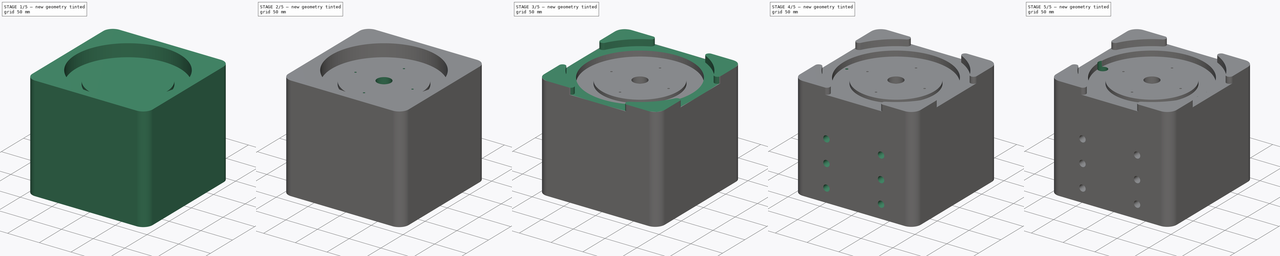
[diagram: build sequence overview — one tinted view per stage of 5, left to right]
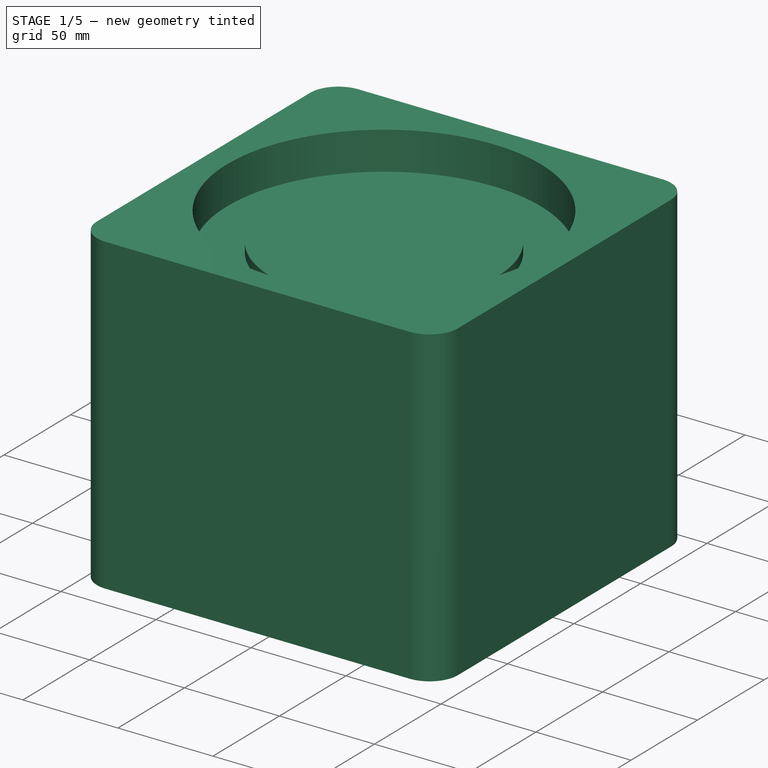
[diagram: stage 1 of 5 — iso view after this stage's code; geometry added in this stage tinted green]
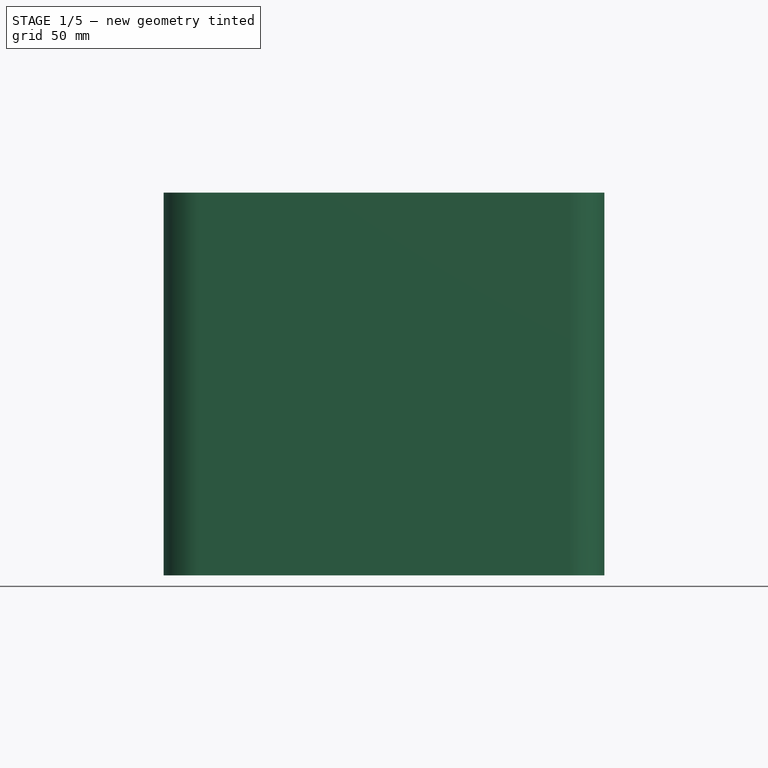
[diagram: stage 1 of 5 — front view after this stage's code; geometry added in this stage tinted green]
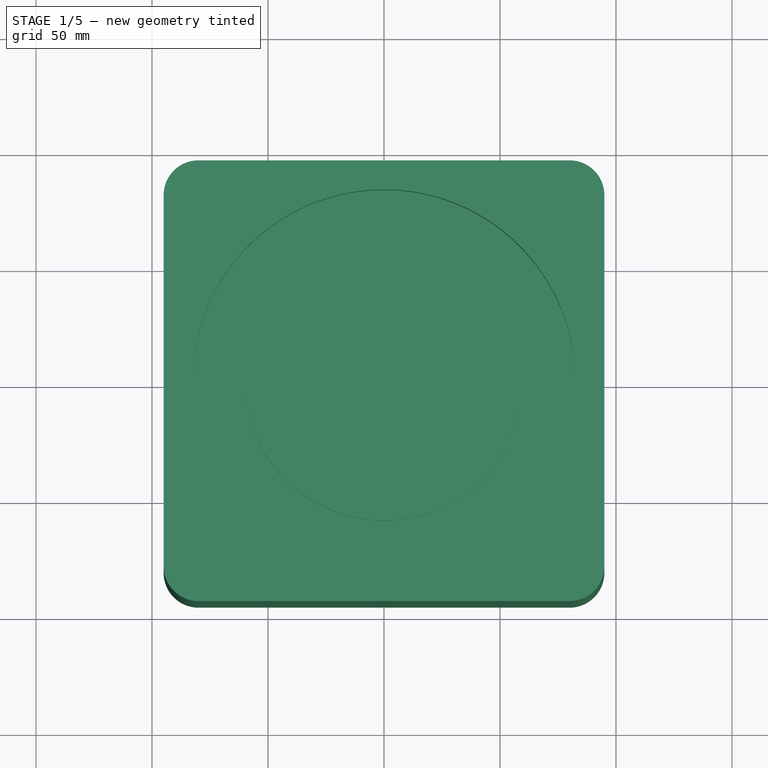
[diagram: stage 1 of 5 — top view after this stage's code; geometry added in this stage tinted green]
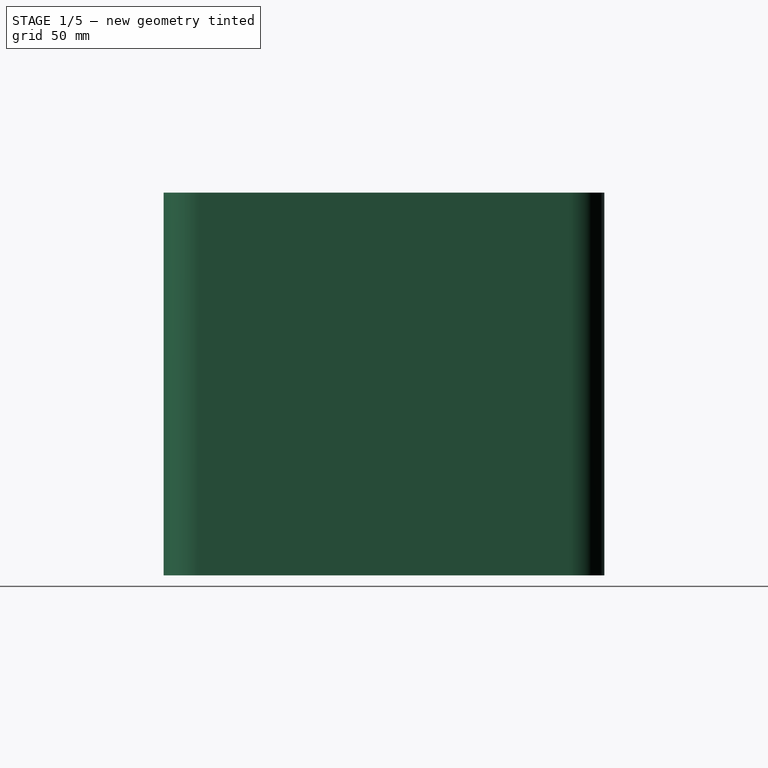
[diagram: stage 1 of 5 — right view after this stage's code; geometry added in this stage tinted green]
FCSTD DOCUMENT  (FreeCAD 0.21R33668 +26 (Git))
Label: Fix_Base
License: All rights reserved
LicenseURL: https://en.wikipedia.org/wiki/All_rights_reserved
objects: Sketcher::SketchObject×26, PartDesign::Pocket×23, PartDesign::Pad×2, PartDesign::Fillet×2, PartDesign::Body×1
note: 81 computed .brp shape members not serialized (recipe doc carries the construction recipe); baked Part::Feature solids carry a one-line shape summary decoded from their .brp

FEATURE [Sketcher::SketchObject] Sketch
  FullyConstrained = true
  MapMode = 5
  Support = -> [XY_Plane]
  sketch-geometry (5):
    g0: LineSegment StartX=-95 StartY=95 StartZ=0 EndX=-95 EndY=-95 EndZ=0
    g1: LineSegment StartX=-95 StartY=-95 StartZ=0 EndX=95 EndY=-95 EndZ=0
    g2: LineSegment StartX=95 StartY=-95 StartZ=0 EndX=95 EndY=95 EndZ=0
    g3: LineSegment StartX=95 StartY=95 StartZ=0 EndX=-95 EndY=95 EndZ=0
    g4: GeomPoint X=0 Y=0 Z=0
  constraints (12):
    c: Coincident(g0,g1)
    c: Coincident(g1,g2)
    c: Coincident(g2,g3)
    c: Coincident(g3,g0)
    c: Horizontal(g1)
    c: Horizontal(g3)
    c: Vertical(g0)
    c: Vertical(g2)
    c: Symmetric(g1,g0,g4)
    c: Coincident(g4,g-1)
    c: DistanceY(g2,g2) = 190
    c: DistanceX(g3,g3) = 190
FEATURE [PartDesign::Pad] Pad
  Direction = (0,0,1)
  Length = 165
  Length2 = 10
  Profile = -> Sketch
  ReferenceAxis = -> Sketch [N_Axis]
  Type = 0
FEATURE [Sketcher::SketchObject] Sketch001
  FullyConstrained = true
  MapMode = 5
  Placement = pos=(0,0,165) rot=(0,0,1;0rad)
  Support = -> [Pad]
  sketch-geometry (1):
    g0: Circle CenterX=0 CenterY=0 CenterZ=0 NormalX=0 NormalY=0 NormalZ=1 AngleXU=0 Radius=82.5
  constraints (2):
    c: Coincident(g0,g-1)
    c: Diameter(g0) = 165
FEATURE [PartDesign::Pocket] Pocket
  BaseFeature = -> Pad
  Direction = (0,0,-1)
  Length = 20
  Length2 = 5
  Profile = -> Sketch001
  ReferenceAxis = -> Sketch001 [N_Axis]
  Type = 0
FEATURE [Sketcher::SketchObject] Sketch002
  FullyConstrained = true
  MapMode = 5
  Placement = pos=(0,0,145) rot=(0,0,1;0rad)
  Support = -> [Pocket]
  sketch-geometry (1):
    g0: Circle CenterX=0 CenterY=0 CenterZ=0 NormalX=0 NormalY=0 NormalZ=1 AngleXU=0 Radius=60
  constraints (2):
    c: Coincident(g0,g-1)
    c: Diameter(g0) = 120
FEATURE [PartDesign::Pad] Pad001
  BaseFeature = -> Pocket
  Direction = (0,0,1)
  Length = 5
  Length2 = 10
  Profile = -> Sketch002
  ReferenceAxis = -> Sketch002 [N_Axis]
  Type = 0
FEATURE [PartDesign::Fillet] Fillet
  Base = -> Pad001 [Edge8,Edge2,Edge5,Edge1]
  BaseFeature = -> Pad001
  Radius = 15
  SupportTransform = false
  UseAllEdges = false
FEATURE [Sketcher::SketchObject] Sketch003
  ExternalGeometry = -> [Fillet]
  FullyConstrained = true
  MapMode = 5
  Placement = pos=(0,95,0) rot=(0,0.707107,0.707107;3.14159rad)
  Support = -> [Fillet]
  sketch-geometry (16):
    g0: LineSegment StartX=-50 StartY=35 StartZ=0 EndX=50 EndY=35 EndZ=0
    g1: LineSegment StartX=50 StartY=35 StartZ=0 EndX=50 EndY=5 EndZ=0
    g2: LineSegment StartX=50 StartY=5 StartZ=0 EndX=-50 EndY=5 EndZ=0
    g3: LineSegment StartX=-50 StartY=5 StartZ=0 EndX=-50 EndY=35 EndZ=0
    g4: LineSegment StartX=-50 StartY=70 StartZ=0 EndX=50 EndY=70 EndZ=0
    g5: LineSegment StartX=50 StartY=70 StartZ=0 EndX=50 EndY=40 EndZ=0
    g6: LineSegment StartX=50 StartY=40 StartZ=0 EndX=-50 EndY=40 EndZ=0
    g7: LineSegment StartX=-50 StartY=40 StartZ=0 EndX=-50 EndY=70 EndZ=0
    g8: LineSegment StartX=-50 StartY=105 StartZ=0 EndX=50 EndY=105 EndZ=0
    g9: LineSegment StartX=50 StartY=105 StartZ=0 EndX=50 EndY=75 EndZ=0
    g10: LineSegment StartX=50 StartY=75 StartZ=0 EndX=-50 EndY=75 EndZ=0
    g11: LineSegment StartX=-50 StartY=75 StartZ=0 EndX=-50 EndY=105 EndZ=0
    g12: LineSegment StartX=-50 StartY=140 StartZ=0 EndX=50 EndY=140 EndZ=0
    g13: LineSegment StartX=50 StartY=140 StartZ=0 EndX=50 EndY=110 EndZ=0
    g14: LineSegment StartX=50 StartY=110 StartZ=0 EndX=-50 EndY=110 EndZ=0
    g15: LineSegment StartX=-50 StartY=110 StartZ=0 EndX=-50 EndY=140 EndZ=0
  constraints (49):
    c: DistanceX(g-3,g-4) = 190
    c: Coincident(g0,g1)
    c: Coincident(g1,g2)
    c: Coincident(g2,g3)
    c: Coincident(g3,g0)
    c: Horizontal(g0)
    c: Horizontal(g2)
    c: Vertical(g1)
    c: Vertical(g3)
    c: DistanceY(g1,g1) = 30
    c: DistanceX(g0,g0) = 100
    c: DistanceX(g-1,g1) = 50
    c: DistanceY(g-1,g2) = 5
    c: Coincident(g4,g5)
    c: Coincident(g5,g6)
    c: Coincident(g6,g7)
    c: Coincident(g7,g4)
    c: Horizontal(g4)
    c: Horizontal(g6)
    c: Vertical(g5)
    c: Vertical(g7)
    c: Coincident(g8,g9)
    c: Coincident(g9,g10)
    c: Coincident(g10,g11)
    c: Coincident(g11,g8)
    c: Horizontal(g8)
    c: Horizontal(g10)
    c: Vertical(g9)
    c: Vertical(g11)
    c: Coincident(g12,g13)
    c: Coincident(g13,g14)
    c: Coincident(g14,g15)
    c: Coincident(g15,g12)
    c: Horizontal(g12)
    c: Horizontal(g14)
    c: Vertical(g13)
    c: Vertical(g15)
    c: Equal(g1,g5)
    c: Equal(g9,g1)
    c: Equal(g13,g1)
    c: DistanceY(g0,g5) = 5
    c: DistanceY(g4,g9) = 5
    c: DistanceY(g8,g13) = 5
    c: Equal(g0,g6)
    c: Equal(g10,g0)
    c: Equal(g14,g10)
    c: Vertical(g12,g0)
    c: Vertical(g4,g0)
    c: Vertical(g8,g4)
FEATURE [PartDesign::Pocket] Pocket001
  BaseFeature = -> Fillet
  Direction = (0,-1,2e-16)
  Length = 160
  Length2 = 5
  Profile = -> Sketch003
  ReferenceAxis = -> Sketch003 [N_Axis]
  Type = 0
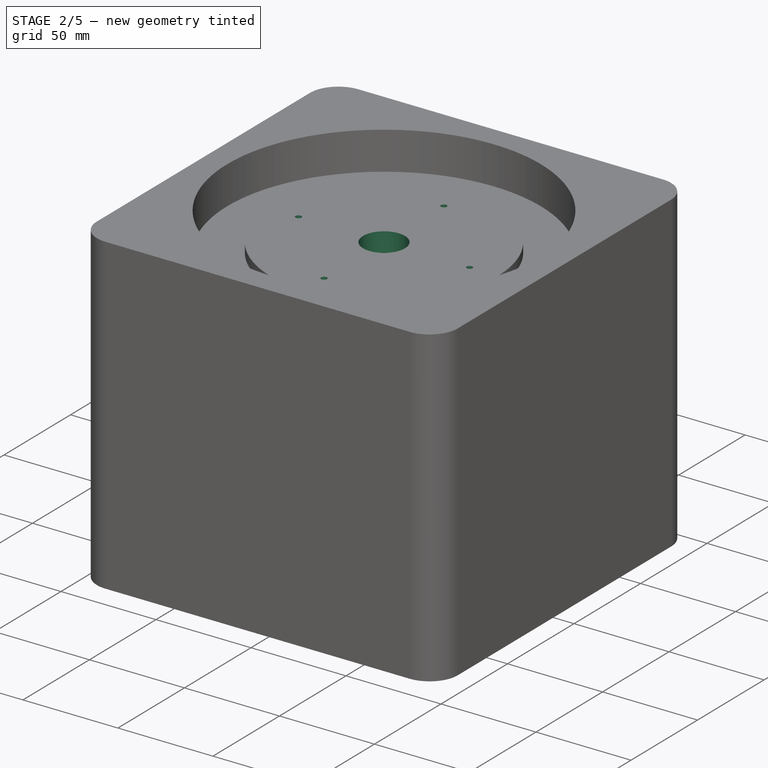
[diagram: stage 2 of 5 — iso view after this stage's code; geometry added in this stage tinted green]
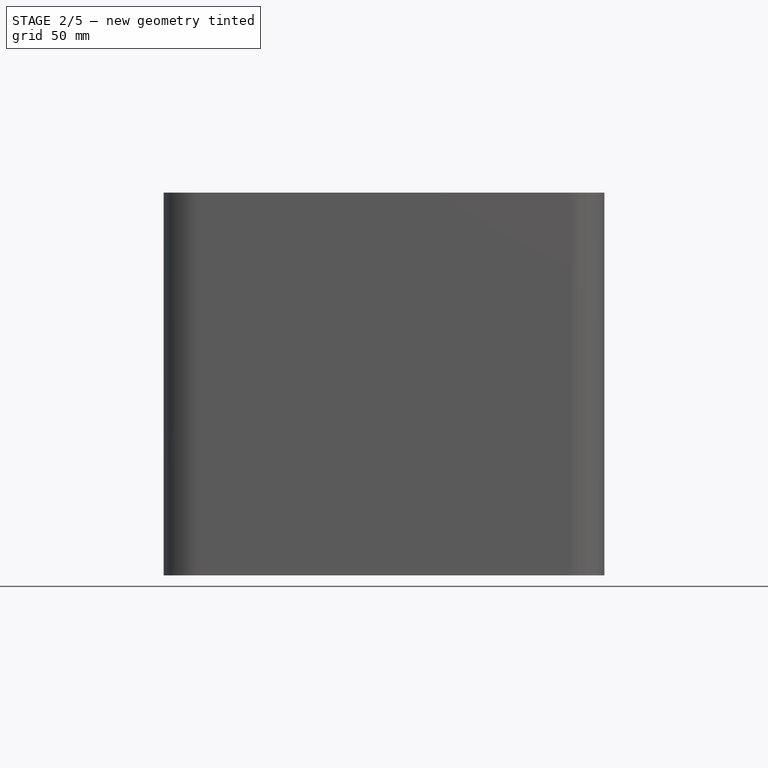
[diagram: stage 2 of 5 — front view after this stage's code; geometry added in this stage tinted green]
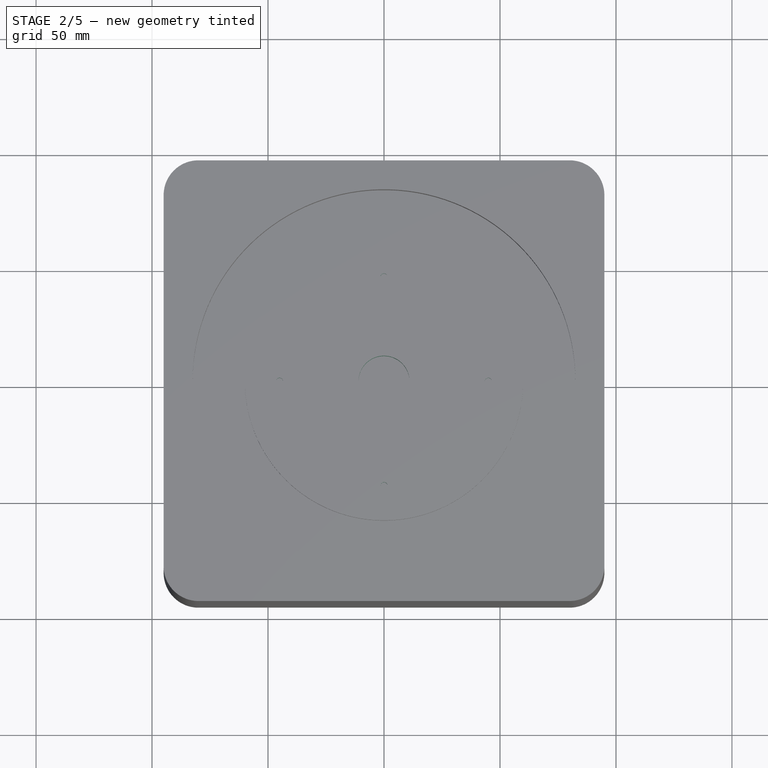
[diagram: stage 2 of 5 — top view after this stage's code; geometry added in this stage tinted green]
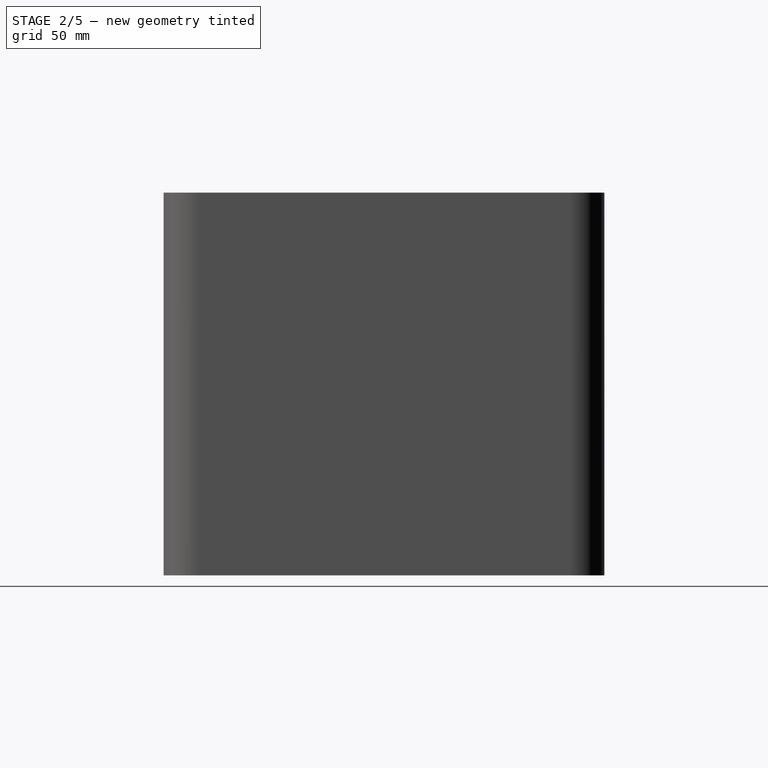
[diagram: stage 2 of 5 — right view after this stage's code; geometry added in this stage tinted green]
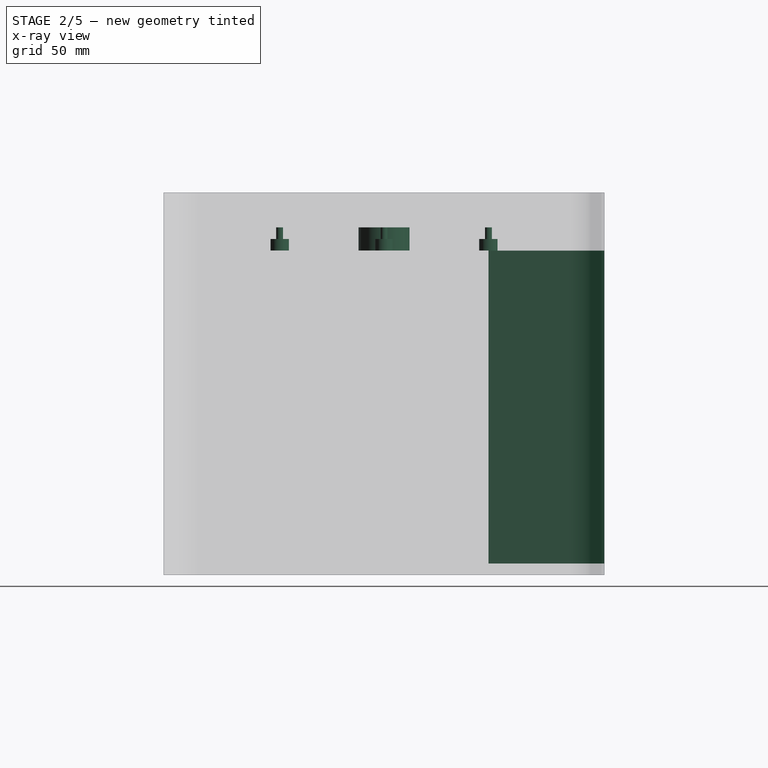
[diagram: stage 2 of 5 — x-ray composite at the right view; earlier geometry ghosted, this stage's added geometry solid]
FEATURE [Sketcher::SketchObject] Sketch004
  ExternalGeometry = -> [Pocket001]
  FullyConstrained = true
  MapMode = 5
  Placement = pos=(0,95,0) rot=(0,0.707107,0.707107;3.14159rad)
  Support = -> [Pocket001]
  sketch-geometry (4):
    g0: LineSegment StartX=-60 StartY=140 StartZ=0 EndX=60 EndY=140 EndZ=0
    g1: LineSegment StartX=60 StartY=140 StartZ=0 EndX=60 EndY=5 EndZ=0
    g2: LineSegment StartX=60 StartY=5 StartZ=0 EndX=-60 EndY=5 EndZ=0
    g3: LineSegment StartX=-60 StartY=5 StartZ=0 EndX=-60 EndY=140 EndZ=0
  constraints (12):
    c: Coincident(g0,g1)
    c: Coincident(g1,g2)
    c: Coincident(g2,g3)
    c: Coincident(g3,g0)
    c: Horizontal(g0)
    c: Horizontal(g2)
    c: Vertical(g1)
    c: Vertical(g3)
    c: Horizontal(g0,g-4)
    c: Horizontal(g1,g-3)
    c: DistanceX(g0,g-4) = 10
    c: DistanceX(g-4,g0) = 10
FEATURE [PartDesign::Pocket] Pocket002
  BaseFeature = -> Pocket001
  Direction = (0,-1,2e-16)
  Length = 50
  Length2 = 5
  Profile = -> Sketch004
  ReferenceAxis = -> Sketch004 [N_Axis]
  Type = 0
FEATURE [Sketcher::SketchObject] Sketch005
  FullyConstrained = true
  MapMode = 5
  Placement = pos=(0,0,150) rot=(0,0,1;0rad)
  Support = -> [Pocket002]
  sketch-geometry (4):
    g0: Circle CenterX=0 CenterY=45 CenterZ=0 NormalX=0 NormalY=0 NormalZ=1 AngleXU=0 Radius=1.5
    g1: Circle CenterX=45 CenterY=0 CenterZ=0 NormalX=0 NormalY=0 NormalZ=1 AngleXU=0 Radius=1.5
    g2: Circle CenterX=0 CenterY=-45 CenterZ=0 NormalX=0 NormalY=0 NormalZ=1 AngleXU=0 Radius=1.5
    g3: Circle CenterX=-45 CenterY=0 CenterZ=0 NormalX=0 NormalY=0 NormalZ=1 AngleXU=0 Radius=1.5
  constraints (12):
    c: PointOnObject(g0,g-2)
    c: Diameter(g0) = 3
    c: PointOnObject(g1,g-1)
    c: Equal(g1,g0)
    c: PointOnObject(g2,g-2)
    c: PointOnObject(g3,g-1)
    c: Equal(g3,g0)
    c: Equal(g1,g2)
    c: DistanceY(g2,g0) = 90
    c: DistanceY(g-1,g0) = 45
    c: DistanceX(g3,g-1) = 45
    c: DistanceX(g-1,g1) = 45
FEATURE [PartDesign::Pocket] Pocket003
  BaseFeature = -> Pocket002
  Direction = (0,0,-1)
  Length = 5
  Length2 = 5
  Profile = -> Sketch005
  ReferenceAxis = -> Sketch005 [N_Axis]
  Type = 2
FEATURE [Sketcher::SketchObject] Sketch006
  ExternalGeometry = -> [Pocket003]
  FullyConstrained = true
  MapMode = 5
  Placement = pos=(0,3.08e-14,140) rot=(1,0,0;3.14159rad)
  Support = -> [Pocket003]
  sketch-geometry (4):
    g0: Circle CenterX=-45 CenterY=0 CenterZ=0 NormalX=0 NormalY=0 NormalZ=1 AngleXU=0 Radius=4
    g1: Circle CenterX=0 CenterY=-45 CenterZ=0 NormalX=0 NormalY=0 NormalZ=1 AngleXU=0 Radius=4
    g2: Circle CenterX=45 CenterY=0 CenterZ=0 NormalX=0 NormalY=0 NormalZ=1 AngleXU=0 Radius=4
    g3: Circle CenterX=0 CenterY=45 CenterZ=0 NormalX=0 NormalY=0 NormalZ=1 AngleXU=0 Radius=4
  constraints (8):
    c: Coincident(g0,g-6)
    c: Diameter(g0) = 8
    c: Coincident(g1,g-5)
    c: Diameter(g1) = 8
    c: Coincident(g2,g-3)
    c: Diameter(g2) = 8
    c: Coincident(g3,g-4)
    c: Diameter(g3) = 8
FEATURE [PartDesign::Pocket] Pocket004
  BaseFeature = -> Pocket003
  Direction = (0,2e-16,1)
  Length = 5
  Length2 = 5
  Profile = -> Sketch006
  ReferenceAxis = -> Sketch006 [N_Axis]
  Type = 0
FEATURE [Sketcher::SketchObject] Sketch007
  ExternalGeometry = -> [Pocket004]
  FullyConstrained = true
  MapMode = 5
  Placement = pos=(0,0,150) rot=(0,0,1;0rad)
  Support = -> [Pocket004]
  sketch-geometry (1):
    g0: Circle CenterX=0 CenterY=0 CenterZ=0 NormalX=0 NormalY=0 NormalZ=1 AngleXU=0 Radius=11
  constraints (2):
    c: Coincident(g0,g-3)
    c: Diameter(g0) = 22
FEATURE [PartDesign::Pocket] Pocket005
  BaseFeature = -> Pocket004
  Direction = (0,0,-1)
  Length = 5
  Length2 = 5
  Profile = -> Sketch007
  ReferenceAxis = -> Sketch007 [N_Axis]
  Type = 2
FEATURE [Sketcher::SketchObject] Sketch008
  ExternalGeometry = -> [Pocket005]
  FullyConstrained = true
  MapMode = 5
  Placement = pos=(0,95,0) rot=(0,0.707107,0.707107;3.14159rad)
  Support = -> [Pocket005]
  sketch-geometry (4):
    g0: LineSegment StartX=-70 StartY=140 StartZ=0 EndX=70 EndY=140 EndZ=0
    g1: LineSegment StartX=70 StartY=140 StartZ=0 EndX=70 EndY=5 EndZ=0
    g2: LineSegment StartX=70 StartY=5 StartZ=0 EndX=-70 EndY=5 EndZ=0
    g3: LineSegment StartX=-70 StartY=5 StartZ=0 EndX=-70 EndY=140 EndZ=0
  constraints (12):
    c: Coincident(g0,g1)
    c: Coincident(g1,g2)
    c: Coincident(g2,g3)
    c: Coincident(g3,g0)
    c: Horizontal(g0)
    c: Horizontal(g2)
    c: Vertical(g1)
    c: Vertical(g3)
    c: Horizontal(g0,g-5)
    c: Horizontal(g1,g-6)
    c: DistanceX(g-5,g0) = 10
    c: DistanceX(g0,g-3) = 10
FEATURE [PartDesign::Pocket] Pocket006
  BaseFeature = -> Pocket005
  Direction = (0,-1,2e-16)
  Length = 5
  Length2 = 5
  Profile = -> Sketch008
  ReferenceAxis = -> Sketch008 [N_Axis]
  Type = 0
FEATURE [Sketcher::SketchObject] Sketch009
  ExternalGeometry = -> [Pocket006]
  FullyConstrained = true
  MapMode = 5
  Placement = pos=(60,0,0) rot=(0.57735,-0.57735,-0.57735;2.0944rad)
  Support = -> [Pocket006]
  sketch-geometry (4):
    g0: LineSegment StartX=-80 StartY=140 StartZ=0 EndX=-50 EndY=140 EndZ=0
    g1: LineSegment StartX=-50 StartY=140 StartZ=0 EndX=-50 EndY=5 EndZ=0
    g2: LineSegment StartX=-50 StartY=5 StartZ=0 EndX=-80 EndY=5 EndZ=0
    g3: LineSegment StartX=-80 StartY=5 StartZ=0 EndX=-80 EndY=140 EndZ=0
  constraints (14):
    c: Coincident(g0,g1)
    c: Coincident(g1,g2)
    c: Coincident(g2,g3)
    c: Coincident(g3,g0)
    c: Horizontal(g0)
    c: Horizontal(g2)
    c: Vertical(g1)
    c: Vertical(g3)
    c: Horizontal(g-3,g2)
    c: Horizontal(g0,g-3)
    c: DistanceX(g-3,g-3) = 0
    c: DistanceY(g-3,g-3) = 135
    c: DistanceX(g-3,g0) = 10
    c: DistanceX(g0,g-4) = 5
FEATURE [PartDesign::Pocket] Pocket007
  BaseFeature = -> Pocket006
  Direction = (1,0,0)
  Length = 0
  Length2 = 5
  Profile = -> Sketch009
  ReferenceAxis = -> Sketch009 [N_Axis]
  Type = 3
  UpToFace = -> Pocket006 [Face21]
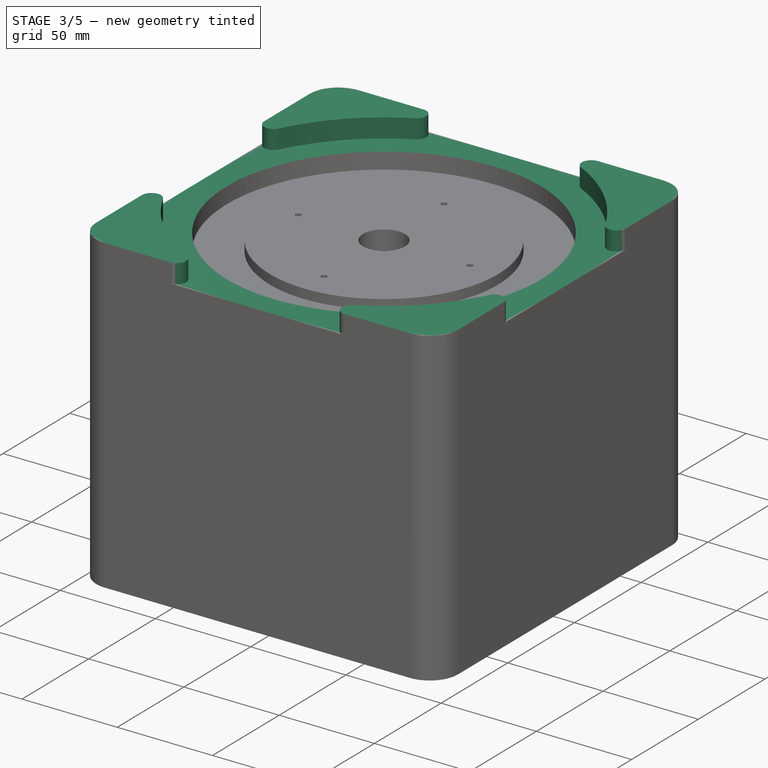
[diagram: stage 3 of 5 — iso view after this stage's code; geometry added in this stage tinted green]
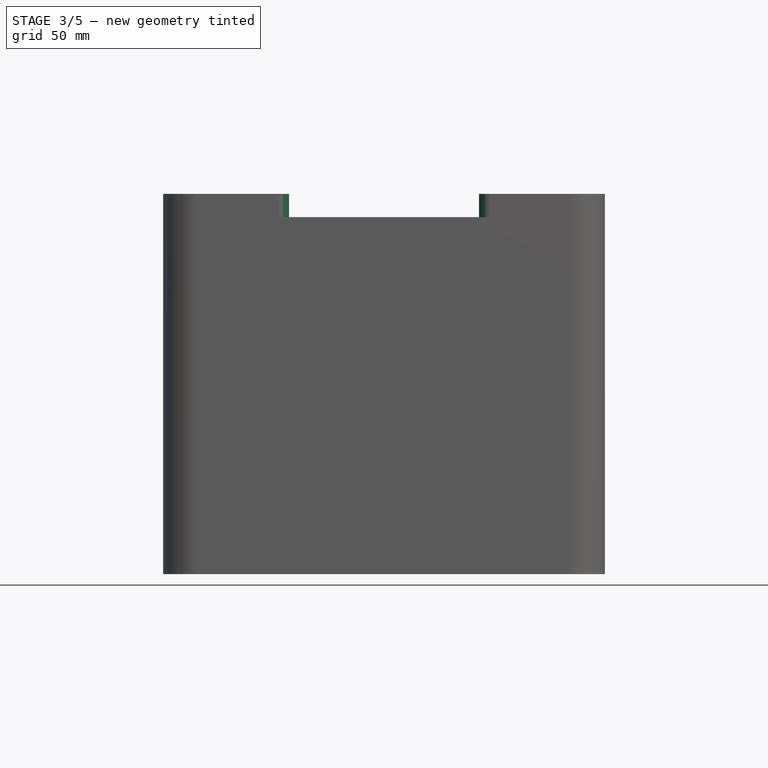
[diagram: stage 3 of 5 — front view after this stage's code; geometry added in this stage tinted green]
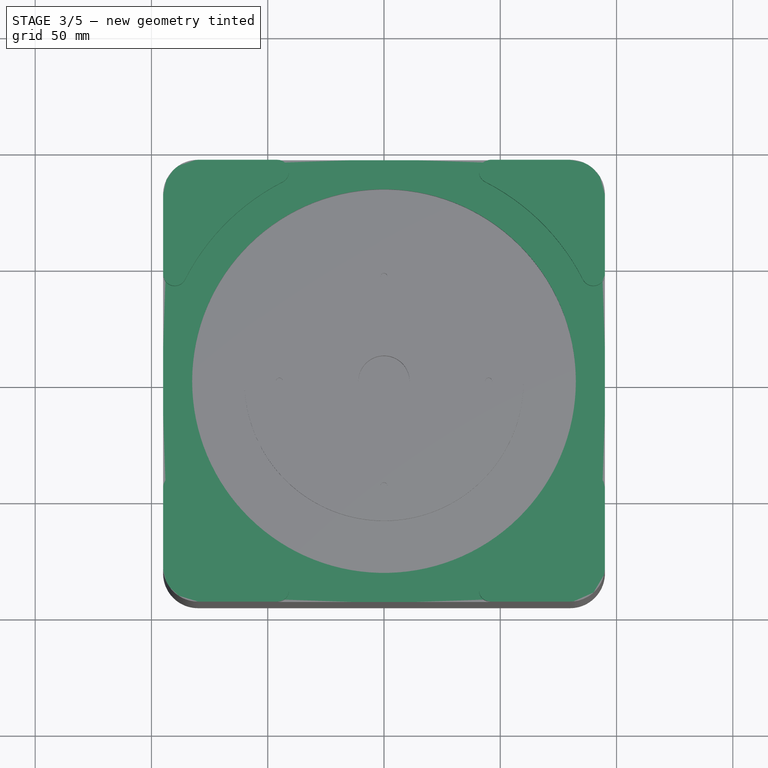
[diagram: stage 3 of 5 — top view after this stage's code; geometry added in this stage tinted green]
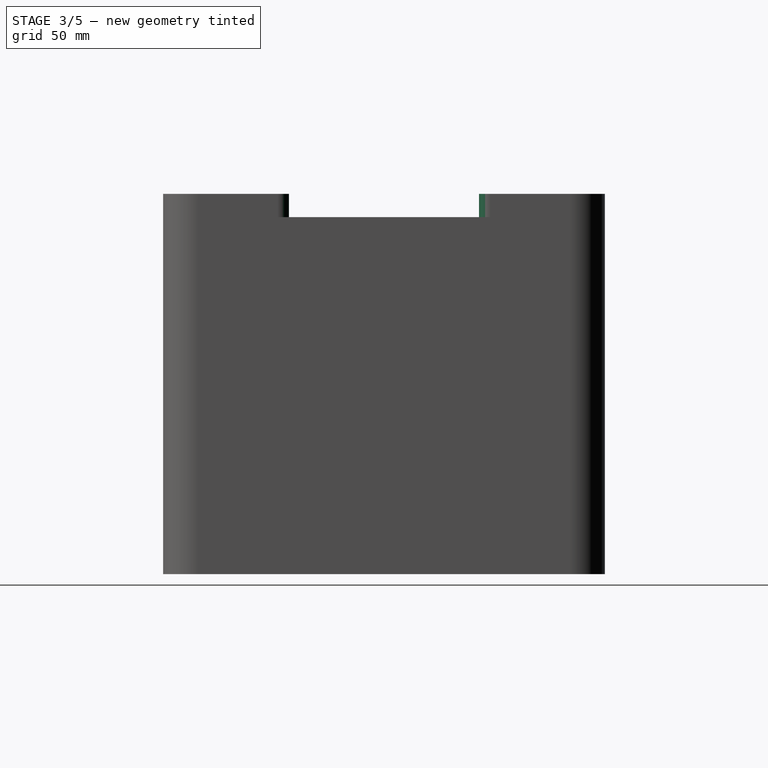
[diagram: stage 3 of 5 — right view after this stage's code; geometry added in this stage tinted green]
FEATURE [Sketcher::SketchObject] Sketch010
  ExternalGeometry = -> [Pocket007]
  FullyConstrained = true
  MapMode = 5
  Placement = pos=(-60,0,0) rot=(0.57735,0.57735,0.57735;2.0944rad)
  Support = -> [Pocket007]
  sketch-geometry (4):
    g0: LineSegment StartX=50 StartY=140 StartZ=0 EndX=80 EndY=140 EndZ=0
    g1: LineSegment StartX=80 StartY=140 StartZ=0 EndX=80 EndY=5 EndZ=0
    g2: LineSegment StartX=80 StartY=5 StartZ=0 EndX=50 EndY=5 EndZ=0
    g3: LineSegment StartX=50 StartY=5 StartZ=0 EndX=50 EndY=140 EndZ=0
  constraints (12):
    c: Coincident(g0,g1)
    c: Coincident(g1,g2)
    c: Coincident(g2,g3)
    c: Coincident(g3,g0)
    c: Horizontal(g0)
    c: Horizontal(g2)
    c: Vertical(g1)
    c: Vertical(g3)
    c: Horizontal(g0,g-3)
    c: DistanceX(g1,g-3) = 10
    c: DistanceX(g-4,g2) = 5
    c: Horizontal(g1,g-3)
FEATURE [PartDesign::Pocket] Pocket008
  BaseFeature = -> Pocket007
  Direction = (-1,0,0)
  Length = 0
  Length2 = 5
  Profile = -> Sketch010
  ReferenceAxis = -> Sketch010 [N_Axis]
  Type = 3
  UpToFace = -> Pocket007 [Face15]
FEATURE [Sketcher::SketchObject] Sketch011
  FullyConstrained = false
  MapMode = 5
  Placement = pos=(0,0,165) rot=(0,0,1;0rad)
  Support = -> [Pocket008]
  sketch-geometry (4):
    g0: LineSegment StartX=-142.432 StartY=131.691 StartZ=0 EndX=161.874 EndY=131.691 EndZ=0
    g1: LineSegment StartX=161.874 StartY=131.691 StartZ=0 EndX=161.874 EndY=-107.784 EndZ=0
    g2: LineSegment StartX=161.874 StartY=-107.784 StartZ=0 EndX=-142.432 EndY=-107.784 EndZ=0
    g3: LineSegment StartX=-142.432 StartY=-107.784 StartZ=0 EndX=-142.432 EndY=131.691 EndZ=0
  constraints (8):
    c: Coincident(g0,g1)
    c: Coincident(g1,g2)
    c: Coincident(g2,g3)
    c: Coincident(g3,g0)
    c: Horizontal(g0)
    c: Horizontal(g2)
    c: Vertical(g1)
    c: Vertical(g3)
FEATURE [PartDesign::Pocket] Pocket009
  BaseFeature = -> Pocket008
  Direction = (0,0,-1)
  Length = 1.5
  Length2 = 5
  Profile = -> Sketch011
  ReferenceAxis = -> Sketch011 [N_Axis]
  Type = 0
FEATURE [Sketcher::SketchObject] Sketch012
  ExternalGeometry = -> [Pocket009]
  FullyConstrained = true
  MapMode = 5
  Placement = pos=(0,0,163.5) rot=(0,0,1;0rad)
  Support = -> [Pocket009]
  sketch-geometry (2):
    g0: Circle CenterX=0 CenterY=0 CenterZ=0 NormalX=0 NormalY=0 NormalZ=1 AngleXU=0 Radius=75
    g1: Circle CenterX=0 CenterY=0 CenterZ=0 NormalX=0 NormalY=0 NormalZ=1 AngleXU=0 Radius=96
  constraints (5):
    c: Coincident(g0,g-3)
    c: Diameter(g-3) = 165
    c: Diameter(g0) = 150
    c: Coincident(g1,g0)
    c: Diameter(g1) = 192
FEATURE [PartDesign::Pocket] Pocket010
  BaseFeature = -> Pocket009
  Direction = (0,0,-1)
  Length = 10
  Length2 = 5
  Profile = -> Sketch012
  ReferenceAxis = -> Sketch012 [N_Axis]
  Type = 0
FEATURE [PartDesign::Fillet] Fillet001
  Base = -> Pocket010 [Edge4,Edge6,Edge51,Edge20,Edge58,Edge57,Edge30,Edge34]
  BaseFeature = -> Pocket010
  Radius = 5
  SupportTransform = false
  UseAllEdges = false
FEATURE [Sketcher::SketchObject] Sketch013
  ExternalGeometry = -> [Fillet001]
  FullyConstrained = true
  MapMode = 5
  Placement = pos=(0,90,-1.89e-14) rot=(0,0.707107,0.707107;3.14159rad)
  Support = -> [Fillet001]
  sketch-geometry (4):
    g0: Circle CenterX=65 CenterY=125 CenterZ=0 NormalX=0 NormalY=0 NormalZ=1 AngleXU=0 Radius=2
    g1: Circle CenterX=65 CenterY=20 CenterZ=0 NormalX=0 NormalY=0 NormalZ=1 AngleXU=0 Radius=2
    g2: Circle CenterX=-65 CenterY=20 CenterZ=0 NormalX=0 NormalY=0 NormalZ=1 AngleXU=0 Radius=2
    g3: Circle CenterX=-65 CenterY=125 CenterZ=0 NormalX=0 NormalY=0 NormalZ=1 AngleXU=0 Radius=2
  constraints (15):
    c: DistanceX(g-5,g-6) = 10
    c: DistanceY(g-5,g-5) = 135
    c: Equal(g3,g0)
    c: Equal(g1,g2)
    c: Diameter(g3) = 4
    c: Equal(g1,g0)
    c: Vertical(g3,g2)
    c: Vertical(g1,g0)
    c: DistanceX(g0,g-6) = 5
    c: DistanceX(g3,g-3) = 5
    c: DistanceY(g-5,g1) = 15
    c: DistanceY(g0,g-5) = 15
    c: Horizontal(g3,g0)
    c: Horizontal(g2,g1)
    c: DistanceY(g-7,g-8) = 30
FEATURE [PartDesign::Pocket] Pocket011
  BaseFeature = -> Fillet001
  Direction = (0,-1,2e-16)
  Length = 10
  Length2 = 5
  Profile = -> Sketch013
  ReferenceAxis = -> Sketch013 [N_Axis]
  Type = 0
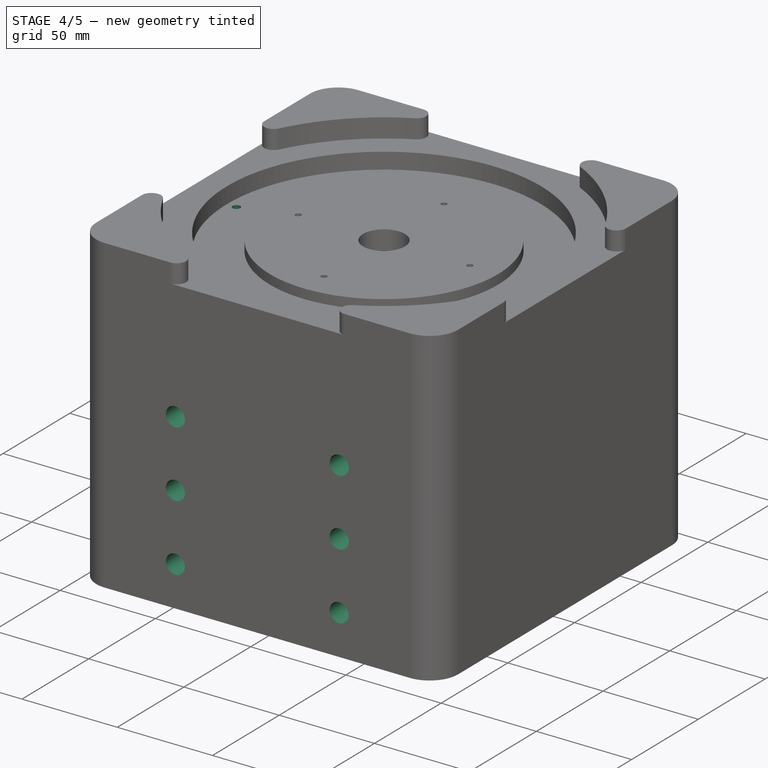
[diagram: stage 4 of 5 — iso view after this stage's code; geometry added in this stage tinted green]
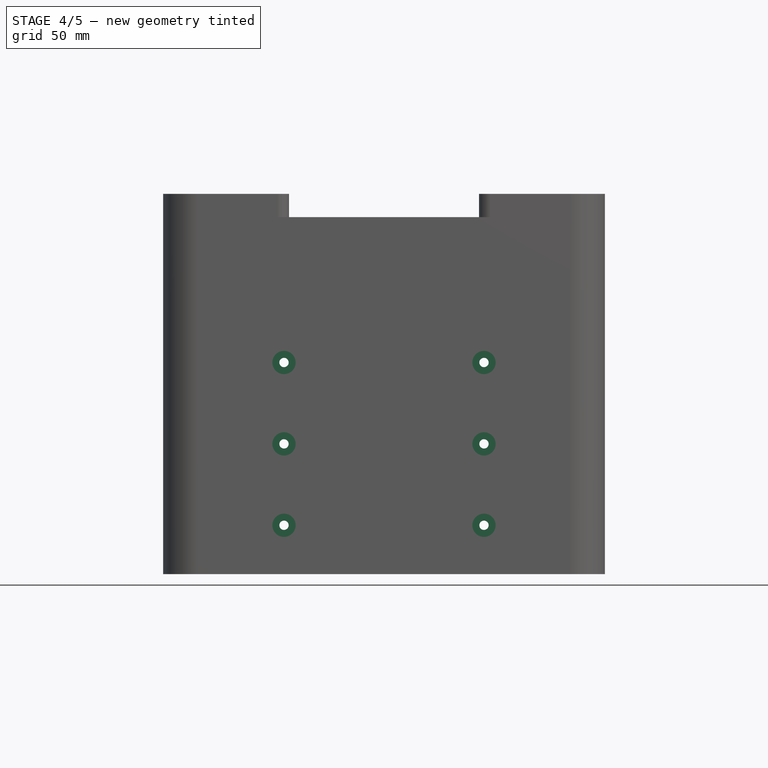
[diagram: stage 4 of 5 — front view after this stage's code; geometry added in this stage tinted green]
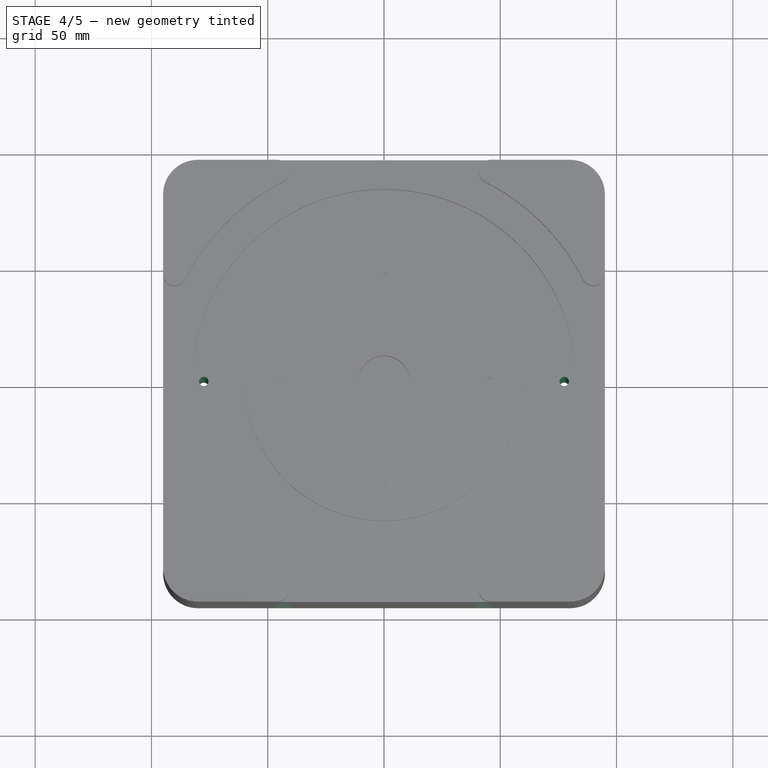
[diagram: stage 4 of 5 — top view after this stage's code; geometry added in this stage tinted green]
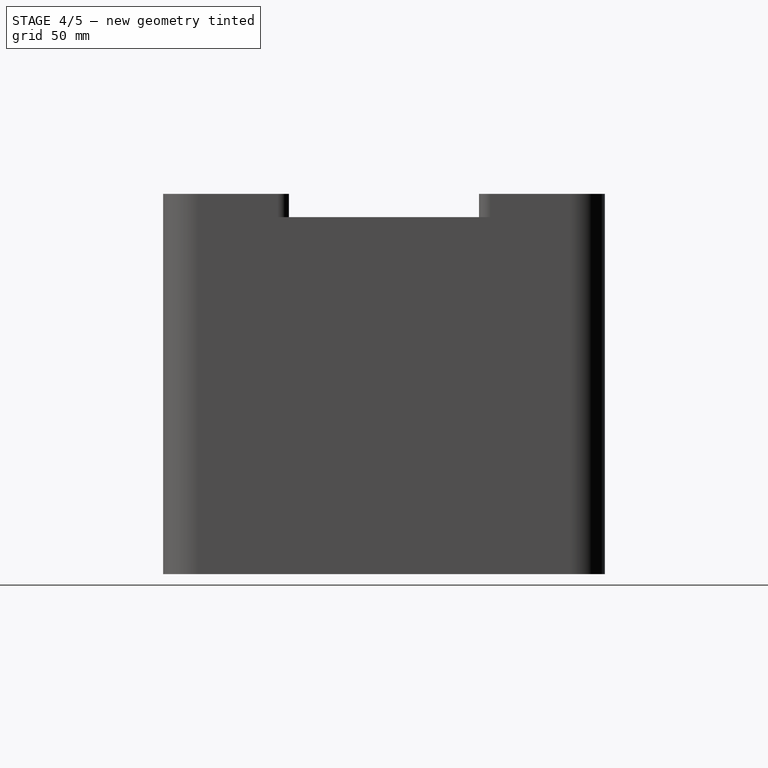
[diagram: stage 4 of 5 — right view after this stage's code; geometry added in this stage tinted green]
FEATURE [Sketcher::SketchObject] Sketch014
  ExternalGeometry = -> [Pocket011]
  FullyConstrained = true
  MapMode = 5
  Placement = pos=(60,0,0) rot=(0.57735,-0.57735,-0.57735;2.0944rad)
  Support = -> [Pocket011]
  sketch-geometry (8):
    g0: LineSegment StartX=-87.55 StartY=129.75 StartZ=0 EndX=-82.45 EndY=129.75 EndZ=0
    g1: LineSegment StartX=-82.45 StartY=129.75 StartZ=0 EndX=-82.45 EndY=120.25 EndZ=0
    g2: LineSegment StartX=-82.45 StartY=120.25 StartZ=0 EndX=-87.55 EndY=120.25 EndZ=0
    g3: LineSegment StartX=-87.55 StartY=120.25 StartZ=0 EndX=-87.55 EndY=129.75 EndZ=0
    g4: LineSegment StartX=-87.55 StartY=24.75 StartZ=0 EndX=-82.45 EndY=24.75 EndZ=0
    g5: LineSegment StartX=-82.45 StartY=24.75 StartZ=0 EndX=-82.45 EndY=15.25 EndZ=0
    g6: LineSegment StartX=-82.45 StartY=15.25 StartZ=0 EndX=-87.55 EndY=15.25 EndZ=0
    g7: LineSegment StartX=-87.55 StartY=15.25 StartZ=0 EndX=-87.55 EndY=24.75 EndZ=0
  constraints (25):
    c: Coincident(g0,g1)
    c: Coincident(g1,g2)
    c: Coincident(g2,g3)
    c: Coincident(g3,g0)
    c: Horizontal(g0)
    c: Horizontal(g2)
    c: Vertical(g1)
    c: Vertical(g3)
    c: DistanceX(g0,g0) = 5.1
    c: DistanceY(g3,g3) = 9.5
    c: DistanceY(g-5,g-5) = 4
    c: DistanceY(g-5,g0) = 2.75
    c: DistanceX(g-3,g0) = 2.45
    c: Coincident(g4,g5)
    c: Coincident(g5,g6)
    c: Coincident(g6,g7)
    c: Coincident(g7,g4)
    c: Horizontal(g4)
    c: Horizontal(g6)
    c: Vertical(g5)
    c: Vertical(g7)
    c: Equal(g7,g1)
    c: Equal(g0,g4)
    c: Vertical(g4,g2)
    c: DistanceY(g-6,g4) = 2.75
FEATURE [PartDesign::Pocket] Pocket012
  BaseFeature = -> Pocket011
  Direction = (1,0,0)
  Length = 0
  Length2 = 5
  Profile = -> Sketch014
  ReferenceAxis = -> Sketch014 [N_Axis]
  Type = 3
  UpToFace = -> Pocket011 [Face33]
FEATURE [Sketcher::SketchObject] Sketch015
  ExternalGeometry = -> [Pocket012]
  FullyConstrained = true
  MapMode = 5
  Placement = pos=(0,-65,1.37e-14) rot=(0,0.707107,0.707107;3.14159rad)
  Support = -> [Pocket012]
  sketch-geometry (6):
    g0: Circle CenterX=-43 CenterY=91 CenterZ=0 NormalX=0 NormalY=0 NormalZ=1 AngleXU=0 Radius=2
    g1: Circle CenterX=43 CenterY=91 CenterZ=0 NormalX=0 NormalY=0 NormalZ=1 AngleXU=0 Radius=2
    g2: Circle CenterX=-43 CenterY=56 CenterZ=0 NormalX=0 NormalY=0 NormalZ=1 AngleXU=0 Radius=2
    g3: Circle CenterX=43 CenterY=56 CenterZ=0 NormalX=0 NormalY=0 NormalZ=1 AngleXU=0 Radius=2
    g4: Circle CenterX=-43 CenterY=21 CenterZ=0 NormalX=0 NormalY=0 NormalZ=1 AngleXU=0 Radius=2
    g5: Circle CenterX=43 CenterY=21 CenterZ=0 NormalX=0 NormalY=0 NormalZ=1 AngleXU=0 Radius=2
  constraints (19):
    c: Diameter(g1) = 4
    c: DistanceY(g-3,g1) = 16
    c: DistanceY(g-4,g3) = 16
    c: DistanceY(g-5,g5) = 16
    c: Vertical(g1,g3)
    c: Vertical(g3,g5)
    c: Vertical(g0,g2)
    c: Vertical(g2,g4)
    c: Horizontal(g0,g1)
    c: Horizontal(g2,g3)
    c: Horizontal(g4,g5)
    c: Equal(g0,g1)
    c: Equal(g2,g3)
    c: Equal(g4,g5)
    c: Equal(g5,g3)
    c: Equal(g3,g1)
    c: DistanceX(g0,g1) = 86
    c: DistanceX(g-3,g-3) = 100
    c: DistanceX(g1,g-3) = 7
FEATURE [PartDesign::Pocket] Pocket013
  BaseFeature = -> Pocket012
  Direction = (0,-1,2e-16)
  Length = 5
  Length2 = 5
  Profile = -> Sketch015
  ReferenceAxis = -> Sketch015 [N_Axis]
  Type = 1
FEATURE [Sketcher::SketchObject] Sketch016
  ExternalGeometry = -> [Pocket013]
  FullyConstrained = true
  MapMode = 5
  Placement = pos=(0,-95,0) rot=(1,0,0;1.5708rad)
  Support = -> [Pocket013]
  sketch-geometry (6):
    g0: Circle CenterX=-43 CenterY=91 CenterZ=0 NormalX=0 NormalY=0 NormalZ=1 AngleXU=0 Radius=5
    g1: Circle CenterX=-43 CenterY=56 CenterZ=0 NormalX=0 NormalY=0 NormalZ=1 AngleXU=0 Radius=5
    g2: Circle CenterX=-43 CenterY=21 CenterZ=0 NormalX=0 NormalY=0 NormalZ=1 AngleXU=0 Radius=5
    g3: Circle CenterX=43 CenterY=21 CenterZ=0 NormalX=0 NormalY=0 NormalZ=1 AngleXU=0 Radius=5
    g4: Circle CenterX=43 CenterY=56 CenterZ=0 NormalX=0 NormalY=0 NormalZ=1 AngleXU=0 Radius=5
    g5: Circle CenterX=43 CenterY=91 CenterZ=0 NormalX=0 NormalY=0 NormalZ=1 AngleXU=0 Radius=5
  constraints (12):
    c: Coincident(g0,g-3)
    c: Coincident(g1,g-4)
    c: Coincident(g2,g-5)
    c: Coincident(g3,g-6)
    c: Coincident(g4,g-7)
    c: Coincident(g5,g-8)
    c: Equal(g0,g5)
    c: Equal(g5,g4)
    c: Equal(g4,g3)
    c: Equal(g3,g2)
    c: Equal(g2,g1)
    c: Diameter(g5) = 10
FEATURE [PartDesign::Pocket] Pocket014
  BaseFeature = -> Pocket013
  Direction = (0,1,-2e-16)
  Length = 20
  Length2 = 5
  Profile = -> Sketch016
  ReferenceAxis = -> Sketch016 [N_Axis]
  Type = 0
FEATURE [Sketcher::SketchObject] Sketch017
  ExternalGeometry = -> [Pocket014]
  FullyConstrained = true
  MapMode = 5
  Placement = pos=(0,45,-9.5e-15) rot=(0,0.707107,0.707107;3.14159rad)
  Support = -> [Pocket014]
  sketch-geometry (4):
    g0: LineSegment StartX=-60 StartY=140 StartZ=0 EndX=60 EndY=140 EndZ=0
    g1: LineSegment StartX=60 StartY=140 StartZ=0 EndX=60 EndY=110 EndZ=0
    g2: LineSegment StartX=60 StartY=110 StartZ=0 EndX=-60 EndY=110 EndZ=0
    g3: LineSegment StartX=-60 StartY=110 StartZ=0 EndX=-60 EndY=140 EndZ=0
  constraints (12):
    c: Coincident(g0,g1)
    c: Coincident(g1,g2)
    c: Coincident(g2,g3)
    c: Coincident(g3,g0)
    c: Horizontal(g0)
    c: Horizontal(g2)
    c: Vertical(g1)
    c: Vertical(g3)
    c: Horizontal(g1,g-4)
    c: DistanceX(g-4,g0) = 10
    c: DistanceX(g0,g-3) = 10
    c: Horizontal(g0,g-3)
FEATURE [PartDesign::Pocket] Pocket015
  BaseFeature = -> Pocket014
  Direction = (0,-1,2e-16)
  Length = 0
  Length2 = 5
  Profile = -> Sketch017
  ReferenceAxis = -> Sketch017 [N_Axis]
  Type = 3
  UpToFace = -> Pocket014 [Face89]
FEATURE [Sketcher::SketchObject] Sketch018
  ExternalGeometry = -> [Pocket015]
  FullyConstrained = true
  MapMode = 5
  Placement = pos=(0,2.31e-14,105) rot=(1,0,0;3.14159rad)
  Support = -> [Pocket015]
  sketch-geometry (4):
    g0: Circle CenterX=-42.5 CenterY=-17.5 CenterZ=0 NormalX=0 NormalY=0 NormalZ=1 AngleXU=0 Radius=1.5
    g1: Circle CenterX=-42.5 CenterY=37.5 CenterZ=0 NormalX=0 NormalY=0 NormalZ=1 AngleXU=0 Radius=1.5
    g2: Circle CenterX=42.5 CenterY=-17.5 CenterZ=0 NormalX=0 NormalY=0 NormalZ=1 AngleXU=0 Radius=1.5
    g3: Circle CenterX=42.5 CenterY=37.5 CenterZ=0 NormalX=0 NormalY=0 NormalZ=1 AngleXU=0 Radius=1.5
  constraints (14):
    c: Vertical(g1,g0)
    c: Diameter(g0) = 3
    c: Equal(g0,g1)
    c: DistanceX(g-3,g0) = 7.5
    c: DistanceX(g-3,g-3) = 0
    c: DistanceY(g-3,g-3) = 110
    c: DistanceY(g-3,g0) = 27.5
    c: DistanceY(g1,g-3) = 27.5
    c: Vertical(g3,g2)
    c: Equal(g2,g3)
    c: Equal(g3,g0)
    c: Horizontal(g3,g1)
    c: Horizontal(g2,g0)
    c: DistanceX(g2,g-4) = 7.5
FEATURE [PartDesign::Pocket] Pocket016
  BaseFeature = -> Pocket015
  Direction = (0,2e-16,1)
  Length = 20
  Length2 = 90
  Profile = -> Sketch018
  ReferenceAxis = -> Sketch018 [N_Axis]
  Type = 4
FEATURE [Sketcher::SketchObject] Sketch019
  ExternalGeometry = -> [Pocket016]
  FullyConstrained = true
  MapMode = 5
  Placement = pos=(0,0,153.5) rot=(0,0,1;0rad)
  Support = -> [Pocket016]
  sketch-geometry (2):
    g0: Circle CenterX=-77.5 CenterY=0 CenterZ=0 NormalX=0 NormalY=0 NormalZ=1 AngleXU=0 Radius=2
    g1: Circle CenterX=77.5 CenterY=0 CenterZ=0 NormalX=0 NormalY=0 NormalZ=1 AngleXU=0 Radius=2
  constraints (6):
    c: PointOnObject(g0,g-1)
    c: PointOnObject(g1,g-1)
    c: Diameter(g1) = 4
    c: Diameter(g0) = 4
    c: DistanceX(g-3,g0) = 17.5
    c: DistanceX(g1,g-4) = 17.5
FEATURE [PartDesign::Pocket] Pocket017
  BaseFeature = -> Pocket016
  Direction = (0,0,-1)
  Length = 5
  Length2 = 5
  Profile = -> Sketch019
  ReferenceAxis = -> Sketch019 [N_Axis]
  Type = 1
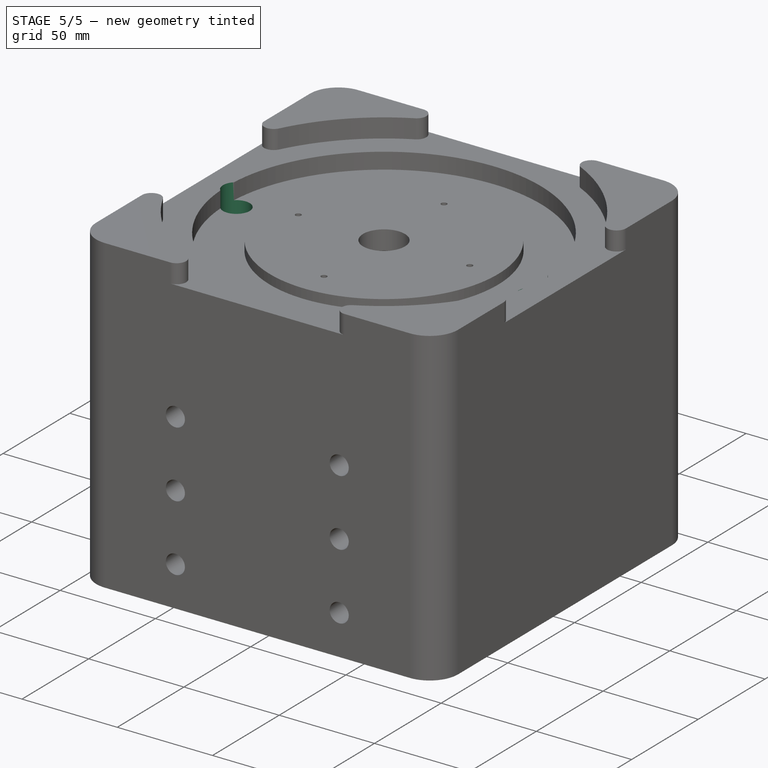
[diagram: stage 5 of 5 — iso view after this stage's code; geometry added in this stage tinted green]
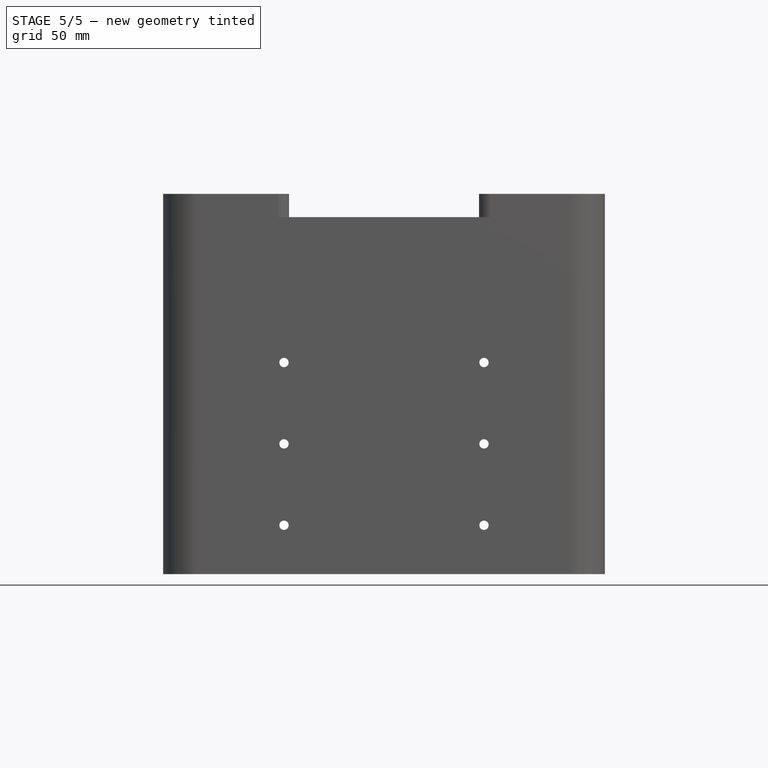
[diagram: stage 5 of 5 — front view after this stage's code; geometry added in this stage tinted green]
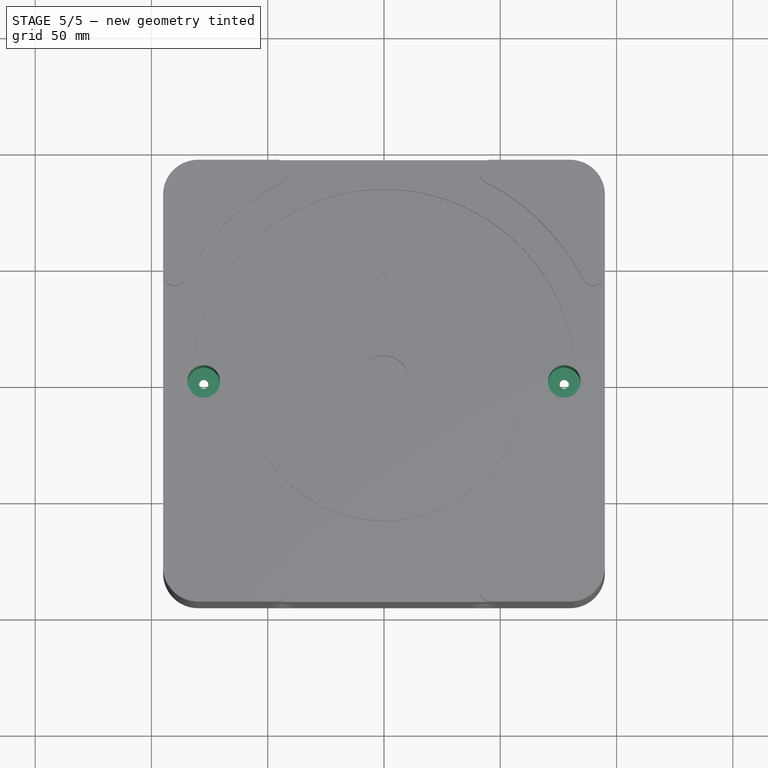
[diagram: stage 5 of 5 — top view after this stage's code; geometry added in this stage tinted green]
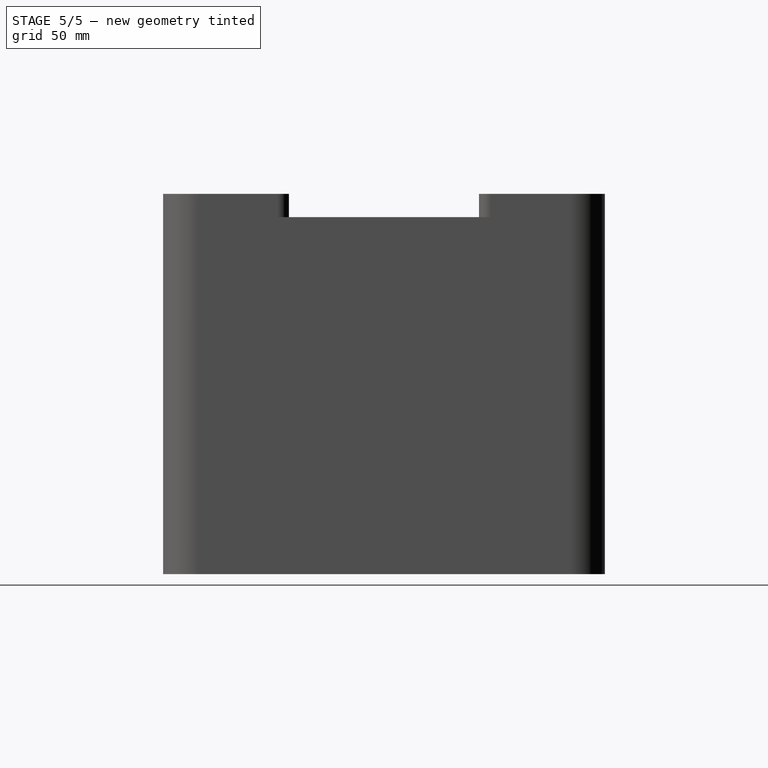
[diagram: stage 5 of 5 — right view after this stage's code; geometry added in this stage tinted green]
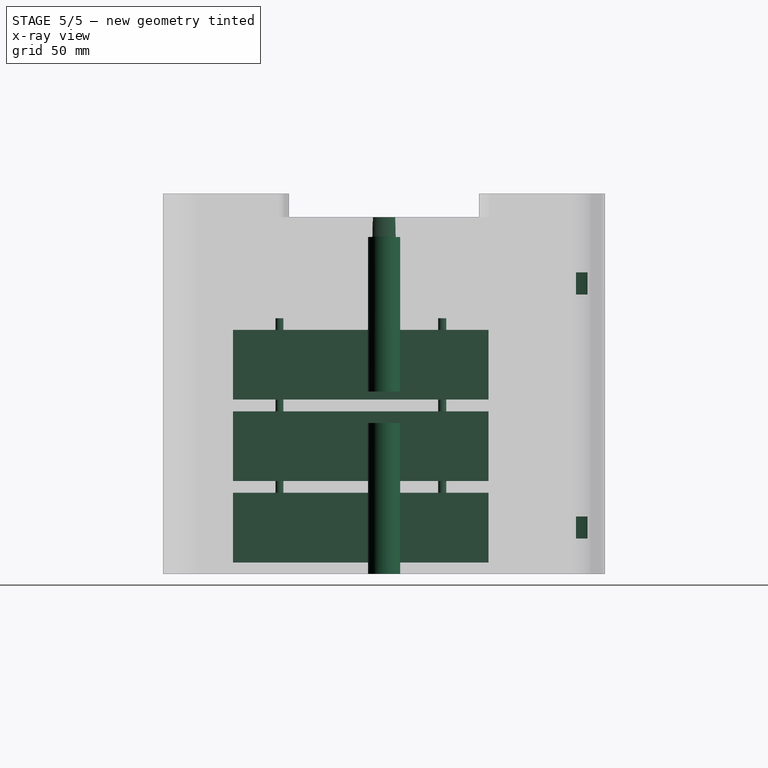
[diagram: stage 5 of 5 — x-ray composite at the right view; earlier geometry ghosted, this stage's added geometry solid]
FEATURE [Sketcher::SketchObject] Sketch020
  ExternalGeometry = -> [Pocket017]
  FullyConstrained = true
  MapMode = 5
  Placement = pos=(0,0,153.5) rot=(0,0,1;0rad)
  Support = -> [Pocket017]
  sketch-geometry (2):
    g0: Circle CenterX=-77.5 CenterY=0 CenterZ=0 NormalX=0 NormalY=0 NormalZ=1 AngleXU=0 Radius=7
    g1: Circle CenterX=77.5 CenterY=0 CenterZ=0 NormalX=0 NormalY=0 NormalZ=1 AngleXU=0 Radius=7
  constraints (4):
    c: Coincident(g0,g-3)
    c: Diameter(g0) = 14
    c: Coincident(g1,g-4)
    c: Diameter(g1) = 14
FEATURE [PartDesign::Pocket] Pocket018
  BaseFeature = -> Pocket017
  Direction = (0,0,-1)
  Length = 75
  Length2 = 5
  Profile = -> Sketch020
  ReferenceAxis = -> Sketch020 [N_Axis]
  Type = 0
FEATURE [Sketcher::SketchObject] Sketch021
  ExternalGeometry = -> [Pocket018]
  FullyConstrained = true
  MapMode = 5
  Placement = pos=(0,0,0) rot=(1,0,0;3.14159rad)
  Support = -> [Pocket018]
  sketch-geometry (2):
    g0: Circle CenterX=77.5 CenterY=0 CenterZ=0 NormalX=0 NormalY=0 NormalZ=1 AngleXU=0 Radius=7
    g1: Circle CenterX=-77.5 CenterY=0 CenterZ=0 NormalX=0 NormalY=0 NormalZ=1 AngleXU=0 Radius=7
  constraints (4):
    c: Coincident(g0,g-4)
    c: Coincident(g1,g-3)
    c: Equal(g1,g0)
    c: Diameter(g0) = 14
FEATURE [PartDesign::Pocket] Pocket019
  BaseFeature = -> Pocket018
  Direction = (0,0,1)
  Length = 65
  Length2 = 5
  Profile = -> Sketch021
  ReferenceAxis = -> Sketch021 [N_Axis]
  Type = 0
FEATURE [Sketcher::SketchObject] Sketch022
  ExternalGeometry = -> [Pocket019]
  FullyConstrained = true
  MapMode = 5
  Placement = pos=(0,45,-9.5e-15) rot=(0,0.707107,0.707107;3.14159rad)
  Support = -> [Pocket019]
  sketch-geometry (24):
    g0: LineSegment StartX=-50 StartY=105 StartZ=0 EndX=-60 EndY=105 EndZ=0
    g1: LineSegment StartX=-60 StartY=105 StartZ=0 EndX=-60 EndY=75 EndZ=0
    g2: LineSegment StartX=-60 StartY=75 StartZ=0 EndX=-50 EndY=75 EndZ=0
    g3: LineSegment StartX=-50 StartY=75 StartZ=0 EndX=-50 EndY=105 EndZ=0
    g4: LineSegment StartX=-50 StartY=70 StartZ=0 EndX=-60 EndY=70 EndZ=0
    g5: LineSegment StartX=-60 StartY=70 StartZ=0 EndX=-60 EndY=40 EndZ=0
    g6: LineSegment StartX=-60 StartY=40 StartZ=0 EndX=-50 EndY=40 EndZ=0
    g7: LineSegment StartX=-50 StartY=40 StartZ=0 EndX=-50 EndY=70 EndZ=0
    g8: LineSegment StartX=-50 StartY=5 StartZ=0 EndX=-60 EndY=5 EndZ=0
    g9: LineSegment StartX=-60 StartY=5 StartZ=0 EndX=-60 EndY=35 EndZ=0
    g10: LineSegment StartX=-60 StartY=35 StartZ=0 EndX=-50 EndY=35 EndZ=0
    g11: LineSegment StartX=-50 StartY=35 StartZ=0 EndX=-50 EndY=5 EndZ=0
    g12: LineSegment StartX=50 StartY=5 StartZ=0 EndX=60 EndY=5 EndZ=0
    g13: LineSegment StartX=60 StartY=5 StartZ=0 EndX=60 EndY=35 EndZ=0
    g14: LineSegment StartX=60 StartY=35 StartZ=0 EndX=50 EndY=35 EndZ=0
    g15: LineSegment StartX=50 StartY=35 StartZ=0 EndX=50 EndY=5 EndZ=0
    g16: LineSegment StartX=50 StartY=40 StartZ=0 EndX=60 EndY=40 EndZ=0
    g17: LineSegment StartX=60 StartY=40 StartZ=0 EndX=60 EndY=70 EndZ=0
    g18: LineSegment StartX=60 StartY=70 StartZ=0 EndX=50 EndY=70 EndZ=0
    g19: LineSegment StartX=50 StartY=70 StartZ=0 EndX=50 EndY=40 EndZ=0
    g20: LineSegment StartX=50 StartY=75 StartZ=0 EndX=60 EndY=75 EndZ=0
    g21: LineSegment StartX=60 StartY=75 StartZ=0 EndX=60 EndY=105 EndZ=0
    g22: LineSegment StartX=60 StartY=105 StartZ=0 EndX=50 EndY=105 EndZ=0
    g23: LineSegment StartX=50 StartY=105 StartZ=0 EndX=50 EndY=75 EndZ=0
  constraints (66):
    c: Coincident(g0,g1)
    c: Coincident(g1,g2)
    c: Coincident(g2,g3)
    c: Coincident(g3,g0)
    c: Horizontal(g0)
    c: Horizontal(g2)
    c: Vertical(g1)
    c: Vertical(g3)
    c: Coincident(g0,g-3)
    c: PointOnObject(g1,g-10)
    c: Horizontal(g2,g-3)
    c: Coincident(g4,g5)
    c: Coincident(g5,g6)
    c: Coincident(g6,g7)
    c: Coincident(g7,g4)
    c: Horizontal(g4)
    c: Horizontal(g6)
    c: Vertical(g5)
    c: Vertical(g7)
    c: Coincident(g4,g-5)
    c: PointOnObject(g5,g-10)
    c: Horizontal(g6,g-5)
    c: Coincident(g8,g9)
    c: Coincident(g9,g10)
    c: Coincident(g10,g11)
    c: Coincident(g11,g8)
    c: Horizontal(g8)
    c: Horizontal(g10)
    c: Vertical(g9)
    c: Vertical(g11)
    c: Coincident(g8,g-6)
    c: PointOnObject(g9,g-10)
    c: Horizontal(g10,g-6)
    c: Coincident(g12,g13)
    c: Coincident(g13,g14)
    c: Coincident(g14,g15)
    c: Coincident(g15,g12)
    c: Horizontal(g12)
    c: Horizontal(g14)
    c: Vertical(g13)
    c: Vertical(g15)
    c: Coincident(g12,g-7)
    c: PointOnObject(g13,g-9)
    c: Horizontal(g14,g-7)
    c: Coincident(g16,g17)
    c: Coincident(g17,g18)
    c: Coincident(g18,g19)
    c: Coincident(g19,g16)
    c: Horizontal(g16)
    c: Horizontal(g18)
    c: Vertical(g17)
    c: Vertical(g19)
    c: Coincident(g16,g-8)
    c: PointOnObject(g17,g-9)
    c: Horizontal(g18,g-8)
    c: Coincident(g20,g21)
    c: Coincident(g21,g22)
    c: Coincident(g22,g23)
    c: Coincident(g23,g20)
    c: Horizontal(g20)
    c: Horizontal(g22)
    c: Vertical(g21)
    c: Vertical(g23)
    c: Coincident(g20,g-4)
    c: PointOnObject(g21,g-9)
    c: Horizontal(g22,g-4)
FEATURE [PartDesign::Pocket] Pocket020
  BaseFeature = -> Pocket019
  Direction = (0,-1,2e-16)
  Length = 0
  Length2 = 5
  Profile = -> Sketch022
  ReferenceAxis = -> Sketch022 [N_Axis]
  Type = 3
  UpToFace = -> Pocket019 [Face98]
FEATURE [Sketcher::SketchObject] Sketch023
  ExternalGeometry = -> [Pocket020]
  FullyConstrained = true
  MapMode = 5
  Placement = pos=(-60,0,0) rot=(0.57735,0.57735,0.57735;2.0944rad)
  Support = -> [Pocket020]
  sketch-geometry (8):
    g0: LineSegment StartX=82.45 StartY=24.75 StartZ=0 EndX=87.55 EndY=24.75 EndZ=0
    g1: LineSegment StartX=87.55 StartY=24.75 StartZ=0 EndX=87.55 EndY=15.25 EndZ=0
    g2: LineSegment StartX=87.55 StartY=15.25 StartZ=0 EndX=82.45 EndY=15.25 EndZ=0
    g3: LineSegment StartX=82.45 StartY=15.25 StartZ=0 EndX=82.45 EndY=24.75 EndZ=0
    g4: LineSegment StartX=82.45 StartY=129.75 StartZ=0 EndX=87.55 EndY=129.75 EndZ=0
    g5: LineSegment StartX=87.55 StartY=129.75 StartZ=0 EndX=87.55 EndY=120.25 EndZ=0
    g6: LineSegment StartX=87.55 StartY=120.25 StartZ=0 EndX=82.45 EndY=120.25 EndZ=0
    g7: LineSegment StartX=82.45 StartY=120.25 StartZ=0 EndX=82.45 EndY=129.75 EndZ=0
  constraints (25):
    c: Coincident(g0,g1)
    c: Coincident(g1,g2)
    c: Coincident(g2,g3)
    c: Coincident(g3,g0)
    c: Horizontal(g0)
    c: Horizontal(g2)
    c: Vertical(g1)
    c: Vertical(g3)
    c: Coincident(g4,g5)
    c: Coincident(g5,g6)
    c: Coincident(g6,g7)
    c: Coincident(g7,g4)
    c: Horizontal(g4)
    c: Horizontal(g6)
    c: Vertical(g5)
    c: Vertical(g7)
    c: DistanceX(g4,g-5) = 2.45
    c: DistanceX(g4,g4) = 5.1
    c: DistanceY(g-5,g4) = 2.75
    c: DistanceY(g5,g5) = 9.5
    c: DistanceY(g1,g1) = 9.5
    c: DistanceY(g-6,g-6) = 4
    c: DistanceY(g-6,g0) = 2.75
    c: DistanceX(g0,g0) = 5.1
    c: DistanceX(g0,g-6) = 2.45
FEATURE [PartDesign::Pocket] Pocket021
  BaseFeature = -> Pocket020
  Direction = (-1,0,0)
  Length = 0
  Length2 = 5
  Profile = -> Sketch023
  ReferenceAxis = -> Sketch023 [N_Axis]
  Type = 3
  UpToFace = -> Pocket020 [Face45]
FEATURE [Sketcher::SketchObject] Sketch024
  ExternalGeometry = -> [Pocket021]
  FullyConstrained = true
  MapMode = 5
  Placement = pos=(0,2.42e-14,110) rot=(0,0,1;0rad)
  Support = -> [Pocket021]
  sketch-geometry (4):
    g0: Circle CenterX=55 CenterY=25 CenterZ=0 NormalX=0 NormalY=0 NormalZ=1 AngleXU=0 Radius=1.75
    g1: Circle CenterX=55 CenterY=-45 CenterZ=0 NormalX=0 NormalY=0 NormalZ=1 AngleXU=0 Radius=1.75
    g2: Circle CenterX=-55 CenterY=25 CenterZ=0 NormalX=0 NormalY=0 NormalZ=1 AngleXU=0 Radius=1.75
    g3: Circle CenterX=-55 CenterY=-45 CenterZ=0 NormalX=0 NormalY=0 NormalZ=1 AngleXU=0 Radius=1.75
  constraints (15):
    c: DistanceX(g-7,g-7) = 10
    c: DistanceY(g-9,g-9) = 110
    c: Horizontal(g2,g0)
    c: Horizontal(g1,g3)
    c: Vertical(g2,g3)
    c: Vertical(g0,g1)
    c: Equal(g0,g1)
    c: Equal(g1,g2)
    c: Equal(g2,g3)
    c: Diameter(g2) = 3.5
    c: DistanceX(g2,g-4) = 5
    c: DistanceY(g2,g-4) = 20
    c: DistanceY(g-6,g3) = 20
    c: DistanceX(g-7,g-7) = 10
    c: DistanceX(g-8,g0) = 5
FEATURE [PartDesign::Pocket] Pocket022
  BaseFeature = -> Pocket021
  Direction = (0,-2e-16,-1)
  Length = 92
  Length2 = 5
  Profile = -> Sketch024
  ReferenceAxis = -> Sketch024 [N_Axis]
  Type = 0
FEATURE [Sketcher::SketchObject] Sketch025
  ExternalGeometry = -> [Pocket022]
  FullyConstrained = true
  MapMode = 5
  Placement = pos=(0,2.42e-14,110) rot=(0,0,1;0rad)
  Support = -> [Pocket022]
  constraints (4):
    c: DistanceY(g-3,g-6) = 20
    c: DistanceX(g-3,g-6) = 5
    c: DistanceY(g-7,g-6) = 27.5
    c: DistanceX(g-7,g-6) = 17.5
FEATURE [PartDesign::Body] Body
  Group = -> [Sketch,Pad,Sketch001,Pocket,Sketch002,Pad001,Fillet,Sketch003,Pocket001,Sketch004,Pocket002,Sketch005,Pocket003,Sketch006,Pocket004,Sketch007,Pocket005,Sketch008,Pocket006,Sketch009,Pocket007,Sketch010,Pocket008,Sketch011,Pocket009,Sketch012,Pocket010,Fillet001,Sketch013,Pocket011,Sketch014,Pocket012,Sketch015,Pocket013,Sketch016,Pocket014,Sketch017,Pocket015,Sketch018,Pocket016,Sketch019,+12 more]
  Origin = -> Origin
  Tip = -> Pocket022
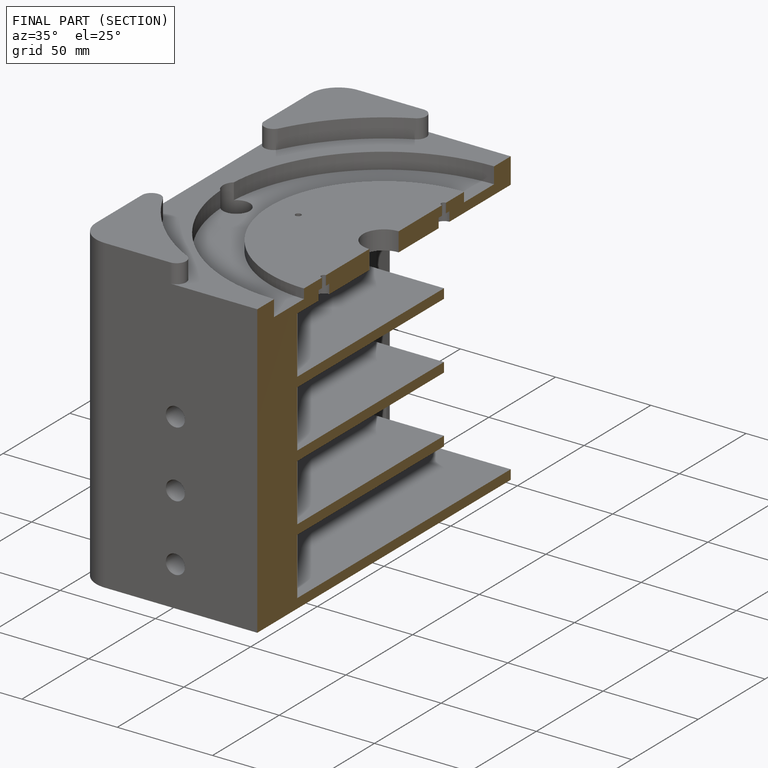
[diagram: finished part — half-section view (interior)]
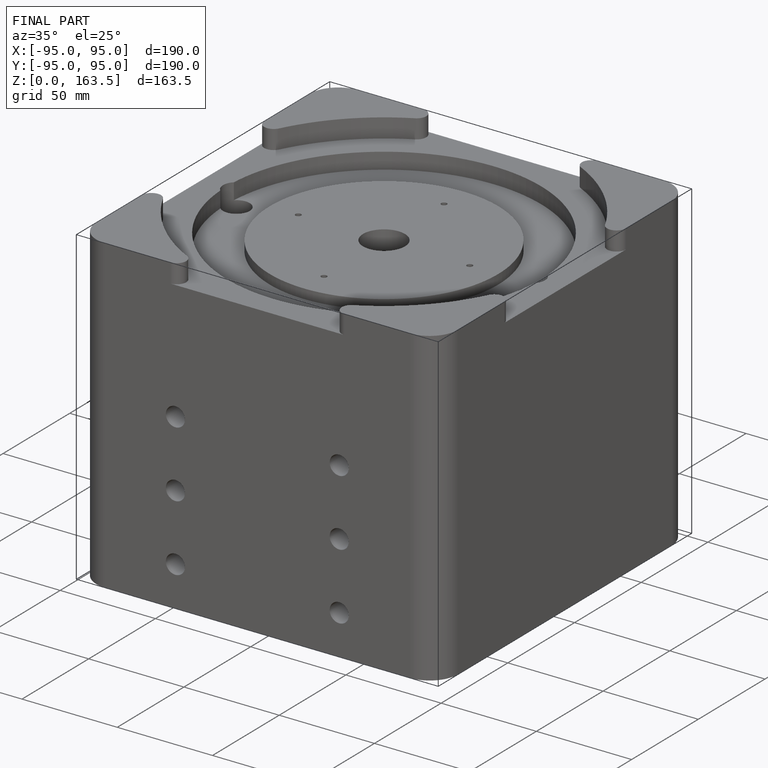
[diagram: finished part — iso view with bounding-box wireframe]
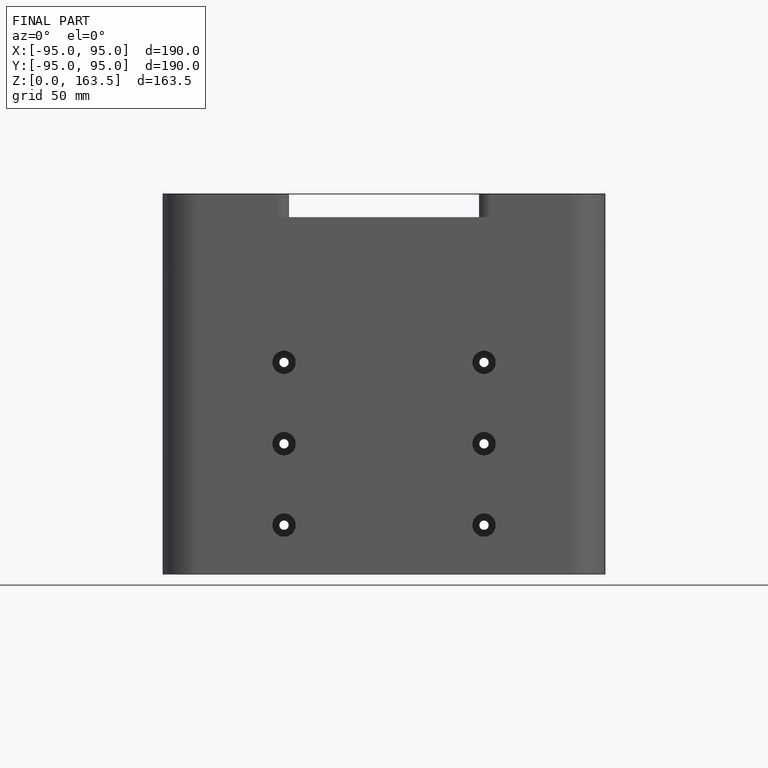
[diagram: finished part — front view with bounding-box wireframe]
